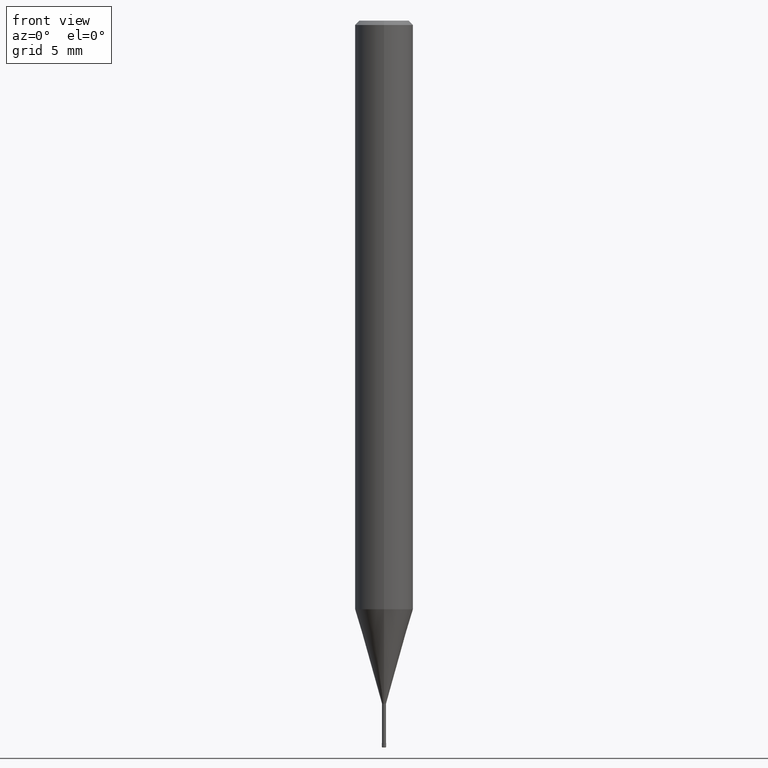
[diagram: clean part render]
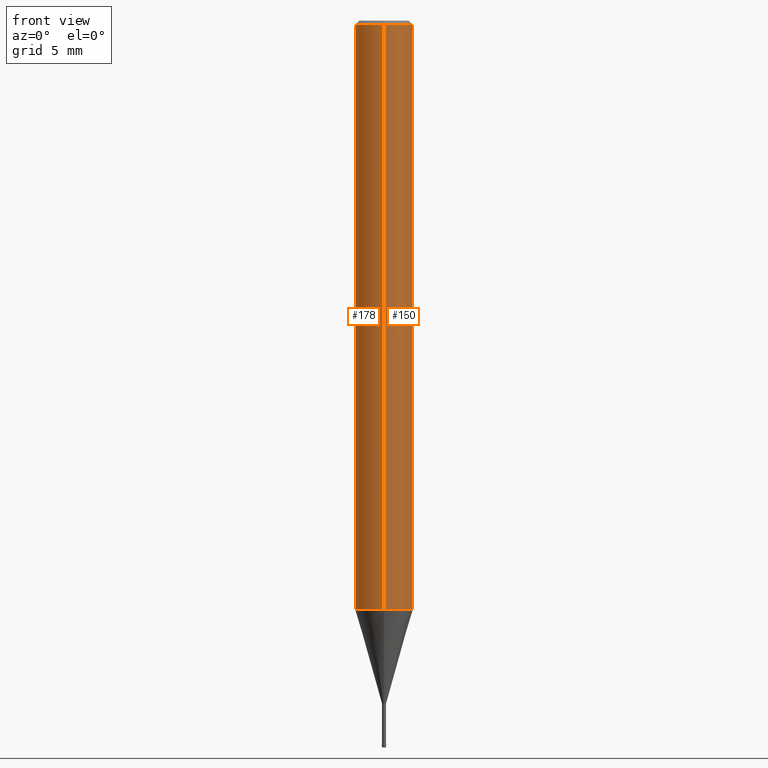
[diagram: same view with one multi-face feature highlighted, each face labeled with its STEP entity id]
A machine part, front view. The highlighted faces form ONE feature: a constant-radius fillet chain: 2 tangent blend faces with common blend radius 2 mm. The faces share edges in the B-rep.
Their STEP definitions:
[1] entity #150 (Cylinder):
#108=EDGE_CURVE('',#220,#144,#263,.T.);
#120=VERTEX_POINT('',#278);
#138=EDGE_CURVE('',#232,#220,#298,.T.);
#144=VERTEX_POINT('',#304);
#150=ADVANCED_FACE('',(#311),#312,.T.);
#198=EDGE_CURVE('',#232,#120,#366,.T.);
#220=VERTEX_POINT('',#389);
#228=EDGE_CURVE('',#144,#120,#399,.T.);
#232=VERTEX_POINT('',#403);
#263=CIRCLE('',#428,2.0);
#278=CARTESIAN_POINT('',(2.44921270764475E-016,-2.0,-0.299999999999997));
#298=LINE('',#468,#469);
#304=CARTESIAN_POINT('',(2.44921270764475E-016,-2.0,-40.496));
#311=FACE_OUTER_BOUND('',#484,.T.);
#312=CYLINDRICAL_SURFACE('',#485,2.0);
#366=CIRCLE('',#557,2.0);
#389=CARTESIAN_POINT('',(0.0,2.0,-40.496));
#399=LINE('',#598,#599);
#403=CARTESIAN_POINT('',(0.0,2.0,-0.299999999999997));
#428=AXIS2_PLACEMENT_3D('',#623,#624,#625);
#468=CARTESIAN_POINT('',(-2.44921270764475E-016,2.0,-20.398));
#469=VECTOR('',#669,1.0);
#484=EDGE_LOOP('',(#685,#686,#687,#688));
#485=AXIS2_PLACEMENT_3D('',#689,#690,#691);
#557=AXIS2_PLACEMENT_3D('',#768,#769,#770);
#598=CARTESIAN_POINT('',(2.44921270764475E-016,-2.0,-20.398));
#599=VECTOR('',#802,1.0);
#623=CARTESIAN_POINT('',(0.0,0.0,-40.496));
#624=DIRECTION('',(0.0,0.0,-1.0));
#625=DIRECTION('',(0.0,1.0,0.0));
#669=DIRECTION('',(0.0,0.0,-1.0));
#685=ORIENTED_EDGE('',*,*,#138,.F.);
#686=ORIENTED_EDGE('',*,*,#198,.T.);
#687=ORIENTED_EDGE('',*,*,#228,.F.);
#688=ORIENTED_EDGE('',*,*,#108,.F.);
#689=CARTESIAN_POINT('',(0.0,0.0,-20.398));
#690=DIRECTION('',(-0.0,-0.0,1.0));
#691=DIRECTION('',(0.0,1.0,0.0));
#768=CARTESIAN_POINT('',(0.0,0.0,-0.299999999999997));
#769=DIRECTION('',(0.0,0.0,-1.0));
#770=DIRECTION('',(0.0,1.0,0.0));
#802=DIRECTION('',(-0.0,-0.0,1.0));
[2] entity #178 (Cylinder):
#120=VERTEX_POINT('',#278);
#138=EDGE_CURVE('',#232,#220,#298,.T.);
#142=EDGE_CURVE('',#120,#232,#302,.T.);
#144=VERTEX_POINT('',#304);
#178=ADVANCED_FACE('',(#342),#343,.T.);
#220=VERTEX_POINT('',#389);
#228=EDGE_CURVE('',#144,#120,#399,.T.);
#230=EDGE_CURVE('',#144,#220,#401,.T.);
#232=VERTEX_POINT('',#403);
#278=CARTESIAN_POINT('',(2.44921270764475E-016,-2.0,-0.299999999999997));
#298=LINE('',#468,#469);
#302=CIRCLE('',#475,2.0);
#304=CARTESIAN_POINT('',(2.44921270764475E-016,-2.0,-40.496));
#342=FACE_OUTER_BOUND('',#528,.T.);
#343=CYLINDRICAL_SURFACE('',#529,2.0);
#389=CARTESIAN_POINT('',(0.0,2.0,-40.496));
#399=LINE('',#598,#599);
#401=CIRCLE('',#602,2.0);
#403=CARTESIAN_POINT('',(0.0,2.0,-0.299999999999997));
#468=CARTESIAN_POINT('',(-2.44921270764475E-016,2.0,-20.398));
#469=VECTOR('',#669,1.0);
#475=AXIS2_PLACEMENT_3D('',#673,#674,#675);
#528=EDGE_LOOP('',(#732,#733,#734,#735));
#529=AXIS2_PLACEMENT_3D('',#736,#737,#738);
#598=CARTESIAN_POINT('',(2.44921270764475E-016,-2.0,-20.398));
#599=VECTOR('',#802,1.0);
#602=AXIS2_PLACEMENT_3D('',#803,#804,#805);
#669=DIRECTION('',(0.0,0.0,-1.0));
#673=CARTESIAN_POINT('',(0.0,0.0,-0.299999999999997));
#674=DIRECTION('',(0.0,0.0,-1.0));
#675=DIRECTION('',(0.0,1.0,0.0));
#732=ORIENTED_EDGE('',*,*,#138,.T.);
#733=ORIENTED_EDGE('',*,*,#230,.F.);
#734=ORIENTED_EDGE('',*,*,#228,.T.);
#735=ORIENTED_EDGE('',*,*,#142,.T.);
#736=CARTESIAN_POINT('',(0.0,0.0,-20.398));
#737=DIRECTION('',(-0.0,-0.0,1.0));
#738=DIRECTION('',(0.0,1.0,0.0));
#802=DIRECTION('',(-0.0,-0.0,1.0));
#803=CARTESIAN_POINT('',(0.0,0.0,-40.496));
#804=DIRECTION('',(0.0,0.0,-1.0));
#805=DIRECTION('',(0.0,1.0,0.0));